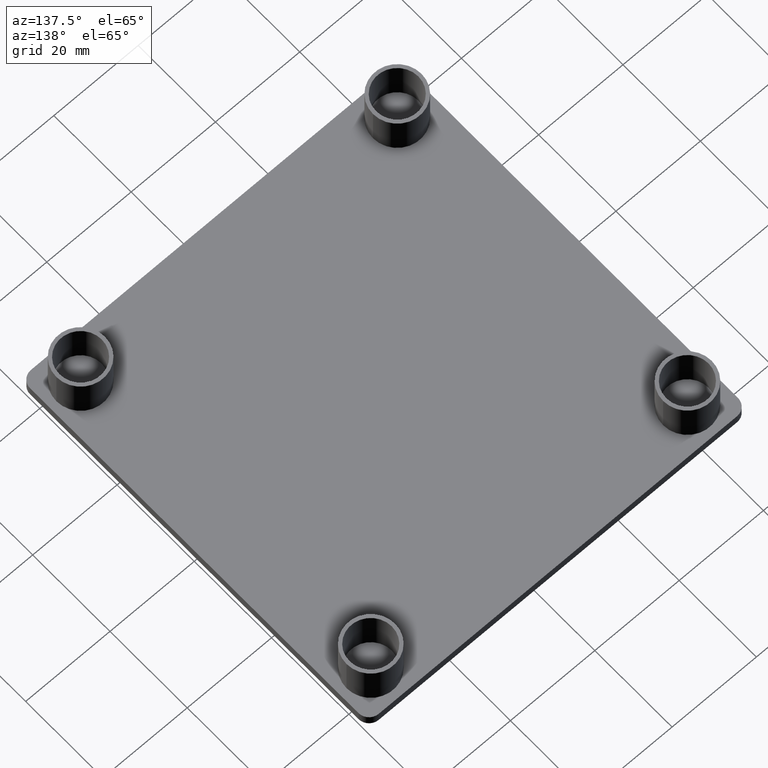
[diagram: clean part render]
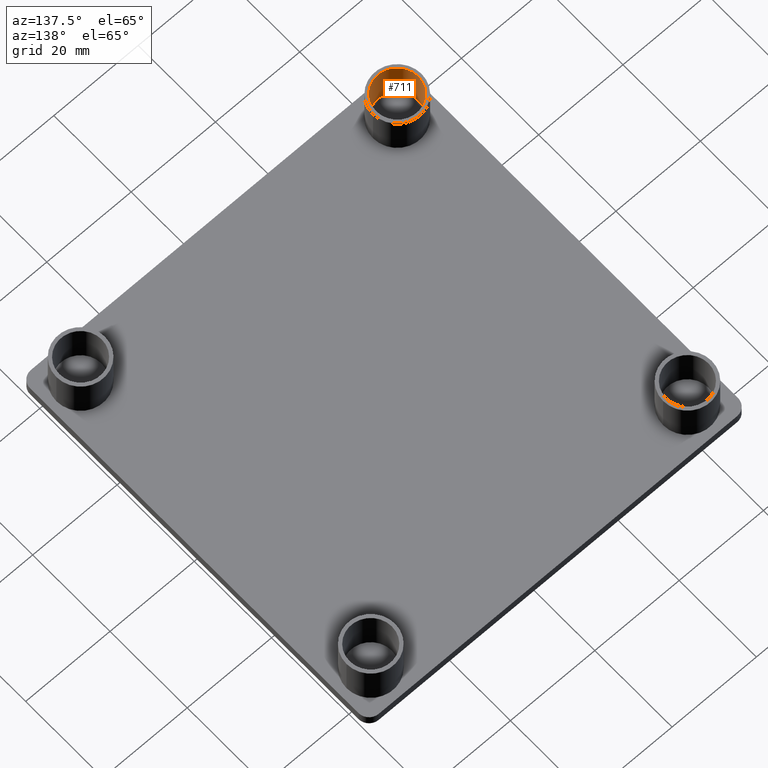
[diagram: same view with one face highlighted and labeled with its STEP entity id]
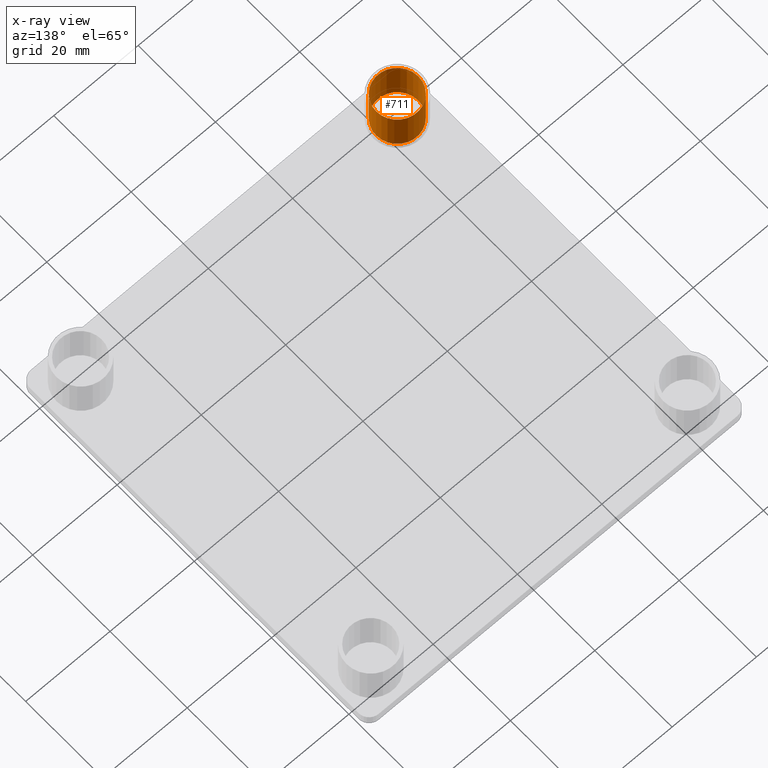
[diagram: x-ray of the same camera — body ghosted, the highlighted face saturated]
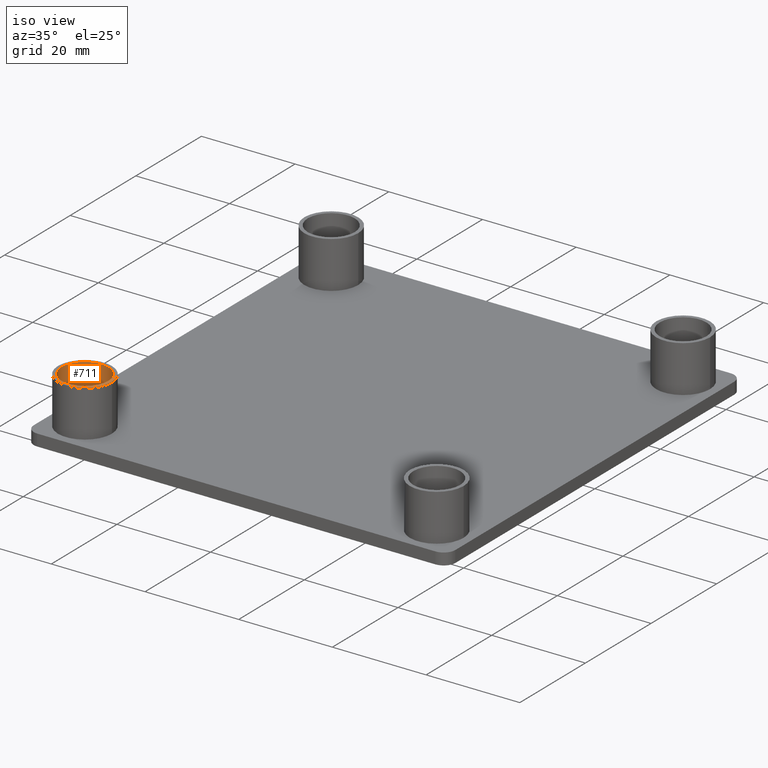
[diagram: same view with one face highlighted and labeled with its STEP entity id]
A machine part, auxiliary view. The second image highlights one B-rep face of the part: STEP entity #711.
The next image is the same camera in x-ray: the body ghosted, the highlighted face saturated — about 0% of this face is hidden behind the body in this view.
A second angle (iso view) of the same face is appended — the face is thin or edge-on in the first view.
In plain terms, the highlighted cylindrical surface (bore or boss wall) has radius 5 mm, axis along (0, 0, -1).
Its self-contained STEP definition (entity closure, byte-faithful):
#385=CARTESIAN_POINT('',(-87.549999999649813,-37.550022499849547,0.0));
#386=VERTEX_POINT('',#385);
#387=CARTESIAN_POINT('',(-77.549999999689817,-37.550022499849547,0.0));
#388=VERTEX_POINT('',#387);
#389=CARTESIAN_POINT('',(-82.549999999669808,-37.550022499849547,0.0));
#390=DIRECTION('',(0.0,0.0,-1.0));
#391=DIRECTION('',(1.0,0.0,0.0));
#392=AXIS2_PLACEMENT_3D('',#389,#390,#391);
#393=CIRCLE('',#392,4.999999999980001);
#394=EDGE_CURVE('',#386,#388,#393,.T.);
#396=CARTESIAN_POINT('',(-82.549999999669808,-37.550022499849547,0.0));
#397=DIRECTION('',(0.0,0.0,-1.0));
#398=DIRECTION('',(1.0,0.0,0.0));
#399=AXIS2_PLACEMENT_3D('',#396,#397,#398);
#400=CIRCLE('',#399,4.999999999980001);
#401=EDGE_CURVE('',#388,#386,#400,.T.);
#677=CARTESIAN_POINT('',(-82.549999999669808,-37.550022499849547,0.0));
#678=DIRECTION('',(0.0,0.0,-1.0));
#679=DIRECTION('',(1.0,-2.449294E-016,0.0));
#680=AXIS2_PLACEMENT_3D('',#677,#678,#679);
#681=CYLINDRICAL_SURFACE('',#680,4.999999999980001);
#682=CARTESIAN_POINT('',(-87.549999999649813,-37.550022499849547,10.0));
#683=VERTEX_POINT('',#682);
#684=CARTESIAN_POINT('',(-77.549999999689817,-37.550022499849547,10.0));
#685=VERTEX_POINT('',#684);
#686=CARTESIAN_POINT('',(-82.549999999669808,-37.550022499849547,10.0));
#687=DIRECTION('',(0.0,0.0,-1.0));
#688=DIRECTION('',(1.0,0.0,0.0));
#689=AXIS2_PLACEMENT_3D('',#686,#687,#688);
#690=CIRCLE('',#689,4.999999999980001);
#691=EDGE_CURVE('',#683,#685,#690,.T.);
#692=ORIENTED_EDGE('',*,*,#691,.F.);
#693=CARTESIAN_POINT('',(-82.549999999669808,-37.550022499849547,10.0));
#694=DIRECTION('',(0.0,0.0,-1.0));
#695=DIRECTION('',(1.0,0.0,0.0));
#696=AXIS2_PLACEMENT_3D('',#693,#694,#695);
#697=CIRCLE('',#696,4.999999999980001);
#698=EDGE_CURVE('',#685,#683,#697,.T.);
#699=ORIENTED_EDGE('',*,*,#698,.F.);
#700=CARTESIAN_POINT('',(-77.549999999689817,-37.550022499849547,0.0));
#701=DIRECTION('',(0.0,0.0,1.0));
#702=VECTOR('',#701,10.0);
#703=LINE('',#700,#702);
#704=EDGE_CURVE('',#388,#685,#703,.T.);
#705=ORIENTED_EDGE('',*,*,#704,.F.);
#706=ORIENTED_EDGE('',*,*,#401,.T.);
#707=ORIENTED_EDGE('',*,*,#394,.T.);
#708=ORIENTED_EDGE('',*,*,#704,.T.);
#709=EDGE_LOOP('',(#692,#699,#705,#706,#707,#708));
#710=FACE_OUTER_BOUND('',#709,.T.);
#711=ADVANCED_FACE('',(#710),#681,.F.);